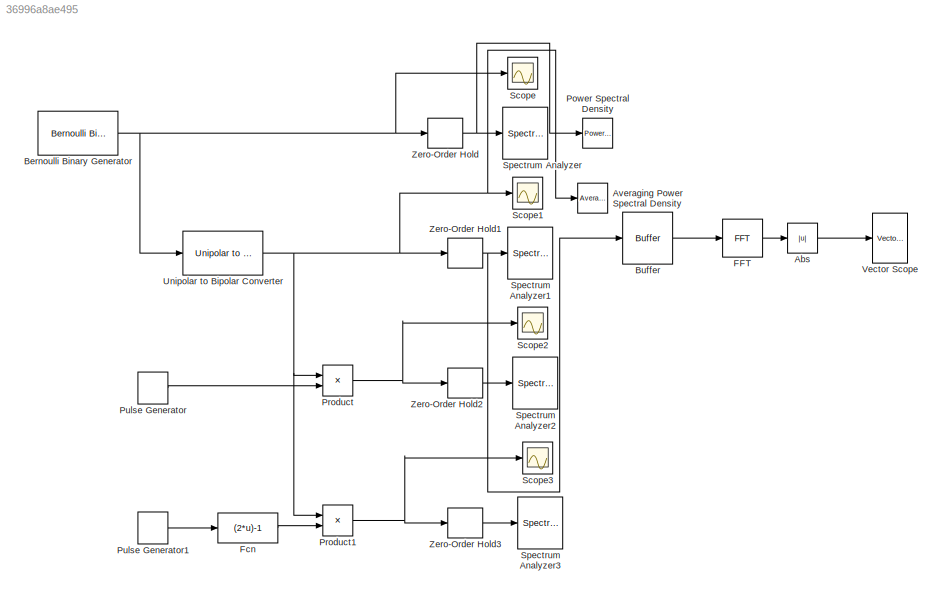
MODEL slx_36996a8ae495
KIND model
CONFIG AbsTol = auto
CONFIG FixedStep = auto
CONFIG MaxStep = auto
CONFIG MinStep = auto
CONFIG RelTol = 1e-3
CONFIG SampleTimeConstraint = Unconstrained
CONFIG Solver = ode45
CONFIG SolverMode = Auto
CONFIG SolverName = ode45
CONFIG StartTime = 0.0
CONFIG StopTime = 10.0
BLOCK [Abs] Abs
  SaturateOnIntegerOverflow = off
BLOCK [Reference] Averaging Power Spectral Density  REF=simulink_extras/Additional
Sinks/Averaging
Power Spectral
Density
  HowOften = 64
  Ports = [1]
  SourceBlock = simulink_extras/Additional\nSinks/Averaging\nPower Spectral\nDensity
  SourceType = Averaging Power Spectral Density
  fftpts = 512
  npts = 128
  sampleT = 0.1
BLOCK [Reference] Bernoulli Binary Generator  REF=commrandsrc2/Bernoulli Binary
Generator
  P = 0.5
  Ports = [0, 1]
  SourceBlock = commrandsrc2/Bernoulli Binary\nGenerator
  SourceType = Bernoulli Binary Generator
  Ts = 1
  frameBased = off
  orient = off
  outDataType = double
  sampPerFrame = 1
  seed = 61
BLOCK [Buffer] Buffer
  N = 128
  TreatMby1Signals = One channel
BLOCK [Reference] FFT  REF=dspxfrm3/FFT
  BitRevOrder = off
  CompMethod = Table lookup
  FFTImplementation = Auto
  FFTLength = 512
  InheritFFTLength = off
  LockScale = off
  Ports = [1, 1]
  RowConvenienceOn = on
  SkipNorm = off
  SourceBlock = dspxfrm3/FFT
  SourceType = FFT
  TableOpt = NEW
  TableOptActive = Speed
  WrapInput = on
  accumDataTypeStr = Inherit: Inherit via internal rule
  accumFracLength = 30
  accumLastDataTypeStr = Inherit: Inherit via internal rule
  accumMode = Inherit via internal rule
  accumWordLength = 32
  additionalParams = off
  allowOverrides = on
  firstCoeffDataTypeStr = Inherit: Same word length as input
  firstCoeffFracLength = 15
  firstCoeffLastDataTypeStr = Inherit: Same word length as input
  firstCoeffMode = Same word length as input
  firstCoeffWordLength = 16
  outputDataTypeStr = Inherit: Inherit via internal rule
  outputFracLength = 15
  outputLastDataTypeStr = Inherit: Inherit via internal rule
  outputMax = []
  outputMin = []
  outputMode = Inherit via internal rule
  outputWordLength = 16
  overflowMode = off
  prodOutputDataTypeStr = Inherit: Inherit via internal rule
  prodOutputFracLength = 30
  prodOutputLastDataTypeStr = Inherit: Inherit via internal rule
  prodOutputMode = Inherit via internal rule
  prodOutputWordLength = 32
  roundingMode = Floor
BLOCK [Fcn] Fcn
  Expr = (2*u)-1
BLOCK [Reference] Power Spectral Density  REF=simulink_extras/Additional
Sinks/Power Spectral
Density
  HowOften = 64
  Ports = [1]
  SourceBlock = simulink_extras/Additional\nSinks/Power Spectral\nDensity
  SourceType = Power Spectral Density
  fftpts = 512
  npts = 128
  sampleT = 0.1
BLOCK [Product] Product
  InputSameDT = off
  OutDataTypeStr = Inherit: Inherit via internal rule
  Ports = [2, 1]
  RndMeth = Floor
  SaturateOnIntegerOverflow = off
BLOCK [Product] Product1
  InputSameDT = off
  OutDataTypeStr = Inherit: Inherit via internal rule
  Ports = [2, 1]
  RndMeth = Floor
  SaturateOnIntegerOverflow = off
BLOCK [DiscretePulseGenerator] Pulse Generator
  Period = 1
  Ports = [0, 1]
  PulseType = Time based
  PulseWidth = 50
BLOCK [DiscretePulseGenerator] Pulse Generator1
  Period = 1
  Ports = [0, 1]
  PulseType = Time based
  PulseWidth = 50
BLOCK [Scope] Scope
  Floating = off
  NumInputPorts = 1
  Ports = [1]
BLOCK [Scope] Scope1
  Floating = off
  NumInputPorts = 1
  Ports = [1]
  SaveName = ScopeData1
BLOCK [Scope] Scope2
  Floating = off
  NumInputPorts = 1
  Ports = [1]
  SaveName = ScopeData2
BLOCK [Scope] Scope3
  Floating = off
  NumInputPorts = 1
  Ports = [1]
  SaveName = ScopeData3
BLOCK [SpectrumAnalyzer] Spectrum Analyzer
  Ports = [1]
  ScopeSpecificationString = spbscopes.SpectrumAnalyzerBlockCfg('CurrentConfiguration', extmgr.ConfigurationSet(extmgr.Configuration('Core','General UI',true),extmgr.Configuration('Core','Source UI',true),extmgr.Configuration('Sources','WiredSimulink',true),extmgr.Configuration('Sources','Simulink',false),extmgr.Configuration('Sources','SimulinkEvent',false),extmgr.Configuration('Sources','File',false),extmgr.Configuration('S...<+7154ch>
BLOCK [SpectrumAnalyzer] Spectrum Analyzer1
  Ports = [1]
  ScopeSpecificationString = spbscopes.SpectrumAnalyzerBlockCfg('CurrentConfiguration', extmgr.ConfigurationSet(extmgr.Configuration('Core','General UI',true),extmgr.Configuration('Core','Source UI',true),extmgr.Configuration('Sources','WiredSimulink',true),extmgr.Configuration('Sources','Simulink',false),extmgr.Configuration('Sources','SimulinkEvent',false),extmgr.Configuration('Sources','File',false),extmgr.Configuration('S...<+7175ch>
BLOCK [SpectrumAnalyzer] Spectrum Analyzer2
  Ports = [1]
  ScopeSpecificationString = spbscopes.SpectrumAnalyzerBlockCfg('CurrentConfiguration', extmgr.ConfigurationSet(extmgr.Configuration('Core','General UI',true),extmgr.Configuration('Core','Source UI',true),extmgr.Configuration('Sources','WiredSimulink',true),extmgr.Configuration('Visuals','Spectrum',true,'AxesProperties',struct('Color',[0 0 0],'XColor',[0.686274509803922 0.686274509803922 0.686274509803922],'YColor',[0.6862745...<+5786ch>
BLOCK [SpectrumAnalyzer] Spectrum Analyzer3
  Ports = [1]
  ScopeSpecificationString = spbscopes.SpectrumAnalyzerBlockCfg('CurrentConfiguration', extmgr.ConfigurationSet(extmgr.Configuration('Core','General UI',true),extmgr.Configuration('Core','Source UI',true),extmgr.Configuration('Sources','WiredSimulink',true),extmgr.Configuration('Visuals','Spectrum',true,'AxesProperties',struct('Color',[0 0 0],'XColor',[0.686274509803922 0.686274509803922 0.686274509803922],'YColor',[0.6862745...<+5700ch>
BLOCK [Reference] Unipolar to Bipolar Converter  REF=commutil2/Unipolar to
Bipolar
Converter
  M = 2
  Ports = [1, 1]
  SourceBlock = commutil2/Unipolar to\nBipolar\nConverter
  SourceType = Unipolar to Bipolar Converter
  dataType = Inherit via internal rule
  polarity = Positive
BLOCK [Reference] Vector Scope  REF=dspsnks4/Vector
Scope
  AxisGrid = on
  AxisLegend = off
  AxisProperties = off
  AxisZoom = off
  DisplayProperties = off
  Domain = Time
  FigPos = get(0,'defaultfigureposition')
  FrameNumber = on
  HorizSpan = 1
  InheritXIncr = on
  LineProperties = off
  Memory = off
  OpenScopeAtSimStart = on
  OpenScopeImmediately = off
  Ports = [1]
  ScopeProperties = on
  ShowPortLabels = off
  SourceBlock = dspsnks4/Vector\nScope
  SourceType = Vector Scope
  XAxisParamsVer = 6.9
  XIncr = 1
  XLabel = Time
  XLimit = Auto
  XMax = 1
  XMin = 0
  XRange = [0...Fs/2]
  XStart = 0
  XUnits = Hertz
  YLabel = Amplitude
  YMax = 10
  YMin = -10
  YUnits = dB
BLOCK [ZeroOrderHold] Zero-Order Hold
  SampleTime = 1/32
BLOCK [ZeroOrderHold] Zero-Order Hold1
  SampleTime = 1/32
BLOCK [ZeroOrderHold] Zero-Order Hold2
  SampleTime = 1/32
BLOCK [ZeroOrderHold] Zero-Order Hold3
  SampleTime = 1/32
LINE Abs:1 -> Vector Scope:1
NET Bernoulli Binary Generator:1 -> Scope:1, Unipolar to Bipolar Converter:1, Zero-Order Hold:1
LINE Buffer:1 -> FFT:1
LINE FFT:1 -> Abs:1
LINE Fcn:1 -> Product1:2
NET Product1:1 -> Scope3:1, Zero-Order Hold3:1
NET Product:1 -> Scope2:1, Zero-Order Hold2:1
LINE Pulse Generator1:1 -> Fcn:1
LINE Pulse Generator:1 -> Product:2
NET Unipolar to Bipolar Converter:1 -> Averaging Power Spectral Density:1, Product1:1, Product:1, Scope1:1, Zero-Order Hold1:1
NET Zero-Order Hold1:1 -> Buffer:1, Spectrum Analyzer1:1
LINE Zero-Order Hold2:1 -> Spectrum Analyzer2:1
LINE Zero-Order Hold3:1 -> Spectrum Analyzer3:1
NET Zero-Order Hold:1 -> Power Spectral Density:1, Spectrum Analyzer:1
note: NET lines group one-source signal fan-out (src -> all destinations, sorted); 1:1 wires keep LINE
